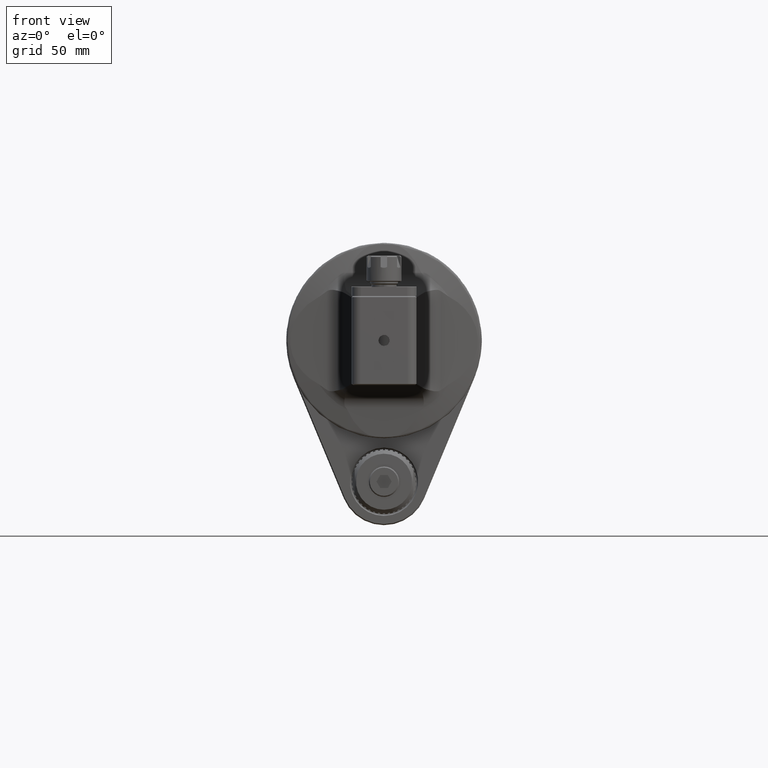
[diagram: clean part render]
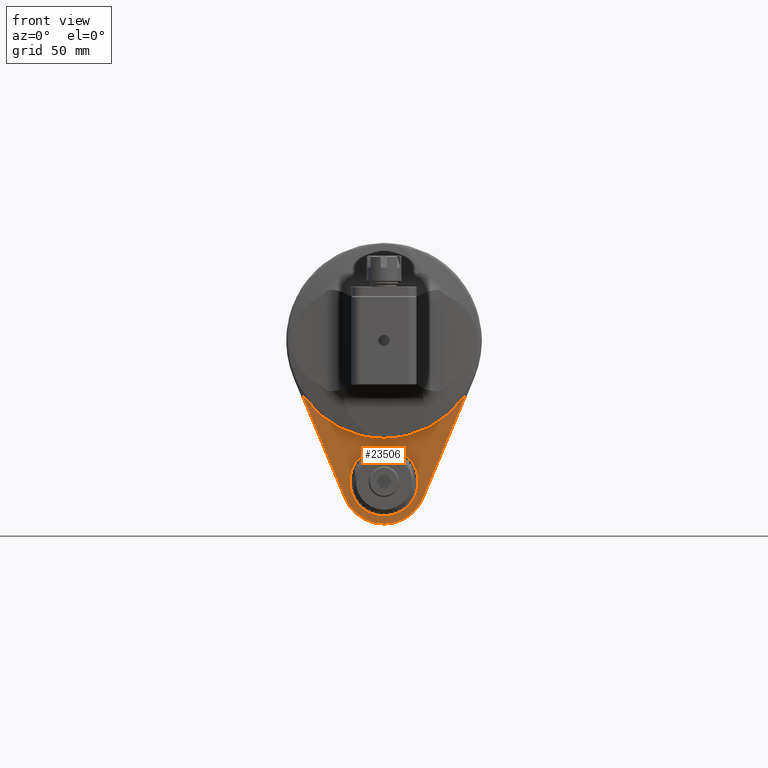
[diagram: same view with one face highlighted and labeled with its STEP entity id]
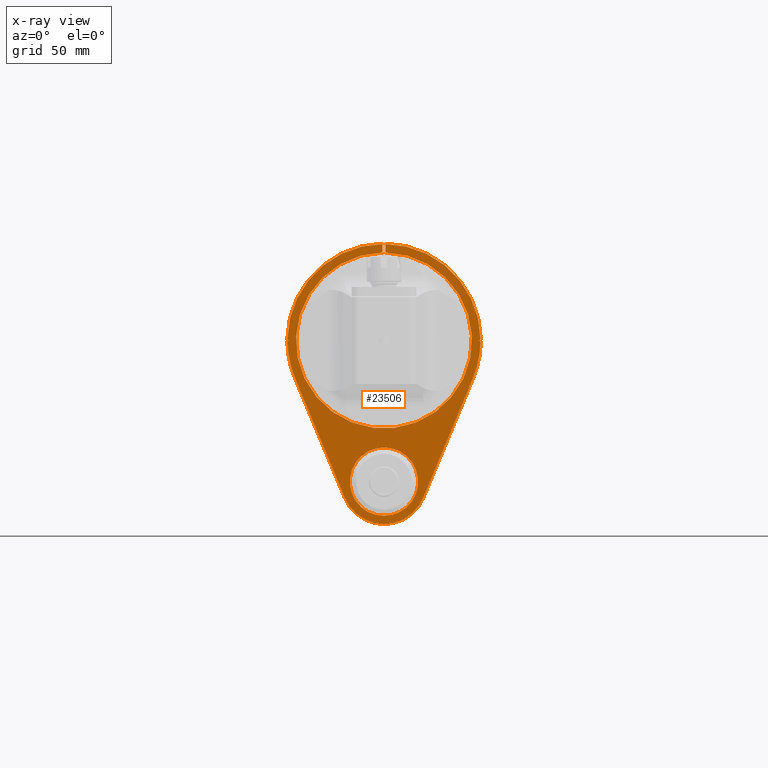
[diagram: x-ray of the same camera — body ghosted, the highlighted face saturated]
A machine part, front view. The second image highlights one B-rep face of the part: STEP entity #23506.
The next image is the same camera in x-ray: the body ghosted, the highlighted face saturated — about 0% of this face is hidden behind the body in this view.
In plain terms, the highlighted planar face has unit normal (0, 1, 0).
Its self-contained STEP definition (entity closure, byte-faithful):
#893=LINE('',#35879,#3022);
#904=LINE('',#35908,#3033);
#905=LINE('',#35910,#3034);
#906=LINE('',#35914,#3035);
#907=LINE('',#35918,#3036);
#908=LINE('',#35922,#3037);
#909=LINE('',#35924,#3038);
#910=LINE('',#35927,#3039);
#3022=VECTOR('',#27873,10.);
#3033=VECTOR('',#27894,10.);
#3034=VECTOR('',#27895,10.);
#3035=VECTOR('',#27898,10.);
#3036=VECTOR('',#27901,10.);
#3037=VECTOR('',#27904,10.);
#3038=VECTOR('',#27905,10.);
#3039=VECTOR('',#27908,10.);
#5334=FACE_BOUND('',#6996,.T.);
#5566=FACE_OUTER_BOUND('',#6995,.T.);
#6995=EDGE_LOOP('',(#15899,#15900,#15901,#15902,#15903,#15904,#15905,#15906,
#15907,#15908,#15909,#15910,#15911,#15912));
#6996=EDGE_LOOP('',(#15913));
#8589=CIRCLE('',#25075,40.50001874255);
#8590=CIRCLE('',#25076,44.49997261385);
#8591=CIRCLE('',#25077,44.50060196107);
#8592=CIRCLE('',#25078,19.49970659949);
#8593=CIRCLE('',#25079,44.5006095081);
#8594=CIRCLE('',#25080,44.49995165086);
#8595=CIRCLE('',#25081,15.74983501204);
#9678=VERTEX_POINT('',#35877);
#9679=VERTEX_POINT('',#35878);
#9690=VERTEX_POINT('',#35903);
#9691=VERTEX_POINT('',#35905);
#9692=VERTEX_POINT('',#35907);
#9693=VERTEX_POINT('',#35909);
#9694=VERTEX_POINT('',#35911);
#9695=VERTEX_POINT('',#35913);
#9696=VERTEX_POINT('',#35915);
#9697=VERTEX_POINT('',#35917);
#9698=VERTEX_POINT('',#35919);
#9699=VERTEX_POINT('',#35921);
#9700=VERTEX_POINT('',#35923);
#9701=VERTEX_POINT('',#35925);
#9702=VERTEX_POINT('',#35928);
#12090=EDGE_CURVE('',#9678,#9679,#893,.T.);
#12103=EDGE_CURVE('',#9679,#9690,#8589,.T.);
#12104=EDGE_CURVE('',#9678,#9691,#8590,.T.);
#12105=EDGE_CURVE('',#9691,#9692,#904,.T.);
#12106=EDGE_CURVE('',#9692,#9693,#905,.T.);
#12107=EDGE_CURVE('',#9693,#9694,#8591,.T.);
#12108=EDGE_CURVE('',#9694,#9695,#906,.T.);
#12109=EDGE_CURVE('',#9695,#9696,#8592,.T.);
#12110=EDGE_CURVE('',#9696,#9697,#907,.T.);
#12111=EDGE_CURVE('',#9697,#9698,#8593,.T.);
#12112=EDGE_CURVE('',#9699,#9698,#908,.T.);
#12113=EDGE_CURVE('',#9700,#9699,#909,.T.);
#12114=EDGE_CURVE('',#9700,#9701,#8594,.T.);
#12115=EDGE_CURVE('',#9701,#9690,#910,.T.);
#12116=EDGE_CURVE('',#9702,#9702,#8595,.T.);
#15899=ORIENTED_EDGE('',*,*,#12103,.F.);
#15900=ORIENTED_EDGE('',*,*,#12090,.F.);
#15901=ORIENTED_EDGE('',*,*,#12104,.T.);
#15902=ORIENTED_EDGE('',*,*,#12105,.T.);
#15903=ORIENTED_EDGE('',*,*,#12106,.T.);
#15904=ORIENTED_EDGE('',*,*,#12107,.T.);
#15905=ORIENTED_EDGE('',*,*,#12108,.T.);
#15906=ORIENTED_EDGE('',*,*,#12109,.T.);
#15907=ORIENTED_EDGE('',*,*,#12110,.T.);
#15908=ORIENTED_EDGE('',*,*,#12111,.T.);
#15909=ORIENTED_EDGE('',*,*,#12112,.F.);
#15910=ORIENTED_EDGE('',*,*,#12113,.F.);
#15911=ORIENTED_EDGE('',*,*,#12114,.T.);
#15912=ORIENTED_EDGE('',*,*,#12115,.T.);
#15913=ORIENTED_EDGE('',*,*,#12116,.T.);
#22640=PLANE('',#25074);
#23506=ADVANCED_FACE('',(#5566,#5334),#22640,.F.);
#25074=AXIS2_PLACEMENT_3D('',#35902,#27888,#27889);
#25075=AXIS2_PLACEMENT_3D('',#35904,#27890,#27891);
#25076=AXIS2_PLACEMENT_3D('',#35906,#27892,#27893);
#25077=AXIS2_PLACEMENT_3D('',#35912,#27896,#27897);
#25078=AXIS2_PLACEMENT_3D('',#35916,#27899,#27900);
#25079=AXIS2_PLACEMENT_3D('',#35920,#27902,#27903);
#25080=AXIS2_PLACEMENT_3D('',#35926,#27906,#27907);
#25081=AXIS2_PLACEMENT_3D('',#35929,#27909,#27910);
#27873=DIRECTION('',(0.,0.,-1.));
#27888=DIRECTION('center_axis',(0.,1.,0.));
#27889=DIRECTION('ref_axis',(1.,0.,0.));
#27890=DIRECTION('center_axis',(0.,-1.,0.));
#27891=DIRECTION('ref_axis',(-0.0185183034889002,0.,0.999828521515511));
#27892=DIRECTION('center_axis',(0.,-1.,0.));
#27893=DIRECTION('ref_axis',(-0.0168539325842697,0.,0.999857962390881));
#27894=DIRECTION('',(0.707106781186548,0.,-0.707106781186548));
#27895=DIRECTION('',(-0.707106781186597,0.,-0.707106781186498));
#27896=DIRECTION('center_axis',(0.,-1.,0.));
#27897=DIRECTION('ref_axis',(-0.999937574173782,0.,-0.0111735292299698));
#27898=DIRECTION('',(0.384615384615375,0.,-0.923076923076927));
#27899=DIRECTION('center_axis',(0.,-1.,0.));
#27900=DIRECTION('ref_axis',(-0.923076923076914,0.,-0.384615384615406));
#27901=DIRECTION('',(0.384615384615375,0.,0.923076923076927));
#27902=DIRECTION('center_axis',(0.,-1.,0.));
#27903=DIRECTION('ref_axis',(0.923076923076914,0.,-0.384615384615406));
#27904=DIRECTION('',(0.707106781186597,0.,-0.707106781186498));
#27905=DIRECTION('',(-0.707106781186548,0.,-0.707106781186548));
#27906=DIRECTION('center_axis',(0.,-1.,0.));
#27907=DIRECTION('ref_axis',(0.999937574173782,0.,0.0111735292299598));
#27908=DIRECTION('',(0.,0.,-1.));
#27909=DIRECTION('center_axis',(0.,1.,0.));
#27910=DIRECTION('ref_axis',(-1.,0.,-2.165486260041E-14));
#35877=CARTESIAN_POINT('',(-0.749991522589499,147.000000006739,44.4937203690403));
#35878=CARTESIAN_POINT('',(-0.7499916383805,147.,40.49307386071));
#35879=CARTESIAN_POINT('',(-0.7499916383805,147.,23.5015675499298));
#35902=CARTESIAN_POINT('Origin',(8.361619475092E-6,147.,6.841323955506E-5));
#35903=CARTESIAN_POINT('',(0.7500083616195,147.,40.49307355097));
#35904=CARTESIAN_POINT('Origin',(3.641532520771E-14,147.,-1.019558827747E-13));
#35905=CARTESIAN_POINT('',(-44.4971866826362,147.000000034935,0.497263514482641));
#35906=CARTESIAN_POINT('Origin',(8.361619559025E-6,147.,6.841323894399E-5));
#35907=CARTESIAN_POINT('',(-43.99999163838,147.,6.841323955441E-5));
#35908=CARTESIAN_POINT('',(-33.49999163838,147.,-10.49993158676));
#35909=CARTESIAN_POINT('',(-44.497808080282,146.9999995781,-0.497747340241212));
#35910=CARTESIAN_POINT('',(-32.9999916383786,147.,11.0000684132394));
#35911=CARTESIAN_POINT('',(-41.0771810109105,146.999992289121,-17.1154272010688));
#35912=CARTESIAN_POINT('Origin',(8.361619340089E-6,147.,6.841324001136E-5));
#35913=CARTESIAN_POINT('',(-17.9998649036207,146.999962351302,-72.4998786689931));
#35914=CARTESIAN_POINT('',(-35.3076839460722,147.,-30.9614700483004));
#35915=CARTESIAN_POINT('',(17.999916283982,147.000060134899,-72.4998931444488));
#35916=CARTESIAN_POINT('Origin',(8.36161960299E-6,147.,-64.99993158676));
#35917=CARTESIAN_POINT('',(41.0772146588279,147.000213627473,-17.1154342729978));
#35918=CARTESIAN_POINT('',(35.3077006693121,147.,-30.9614700483005));
#35919=CARTESIAN_POINT('',(44.4978322555952,146.999999572811,-0.497754783685784));
#35920=CARTESIAN_POINT('Origin',(8.361615083938E-6,147.,6.841324066551E-5));
#35921=CARTESIAN_POINT('',(44.00000836162,147.,6.841323955441E-5));
#35922=CARTESIAN_POINT('',(33.0000083616183,147.,11.0000684132397));
#35923=CARTESIAN_POINT('',(44.4971827232013,147.000000057091,0.497242867970502));
#35924=CARTESIAN_POINT('',(33.5000083616198,147.,-10.4999315867602));
#35925=CARTESIAN_POINT('',(0.750008125579794,147.000000010298,44.4936994150014));
#35926=CARTESIAN_POINT('Origin',(8.361620999206E-6,147.,6.84132397136E-5));
#35927=CARTESIAN_POINT('',(0.7500083616195,147.,11.6545675499298));
#35928=CARTESIAN_POINT('',(8.3616195409698E-6,147.000000000022,-80.7497665988219));
#35929=CARTESIAN_POINT('Origin',(8.361619539041E-6,147.,-64.99993158676));